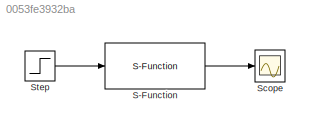
MODEL slx_0053fe3932ba
KIND model
BLOCK [S-Function] S-Function
  EnableBusSupport = off
  FunctionName = sistem_continuu
  Parameters = A,B,C,D
  Ports = [1, 1]
BLOCK [Scope] Scope
  DataFormat = StructureWithTime
  Floating = off
  NumInputPorts = 1
  Ports = [1]
  SampleTime = 0
  ShowLegends = off
  ZoomMode = yonly
BLOCK [Step] Step
  SampleTime = 0
  ZeroCross = off
LINE S-Function:1 -> Scope:1
LINE Step:1 -> S-Function:1
